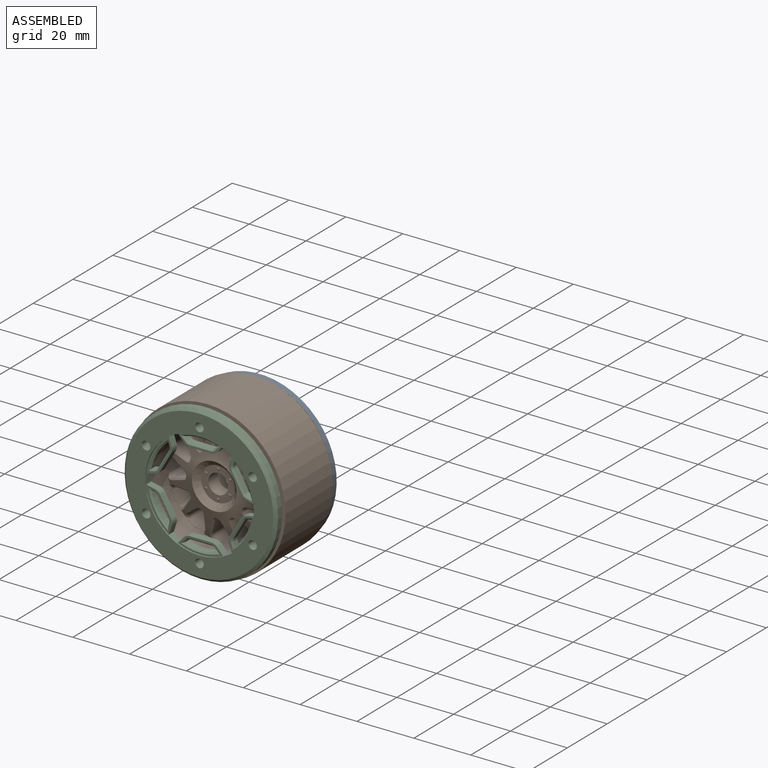
[diagram: assembled view]
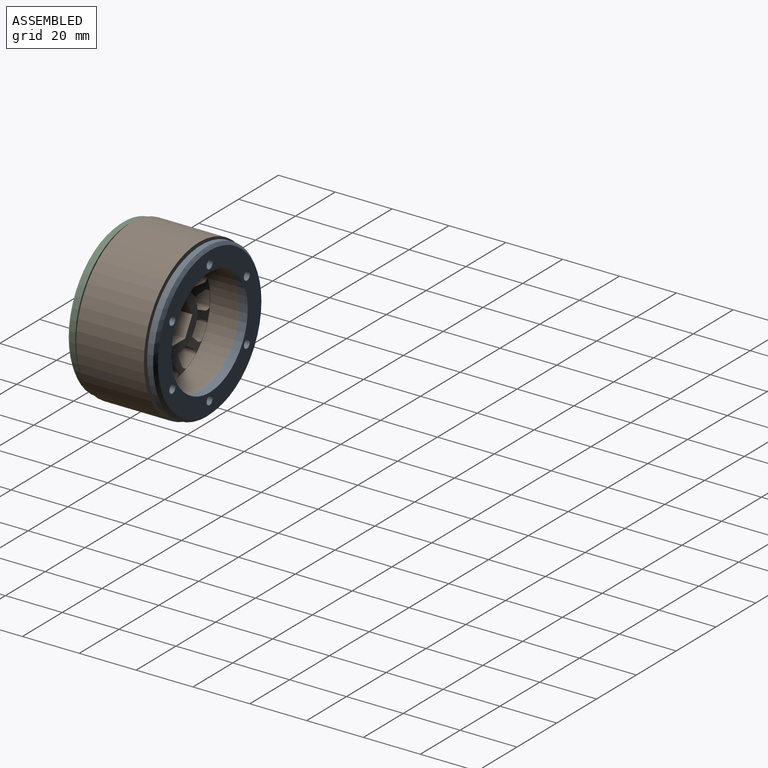
[diagram: assembled view, second angle]
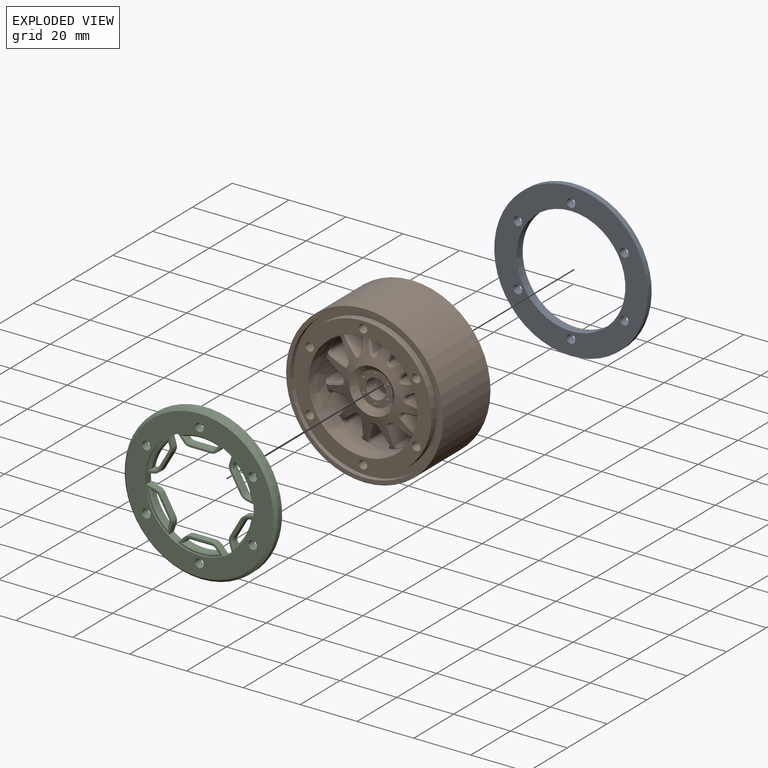
[diagram: exploded view]
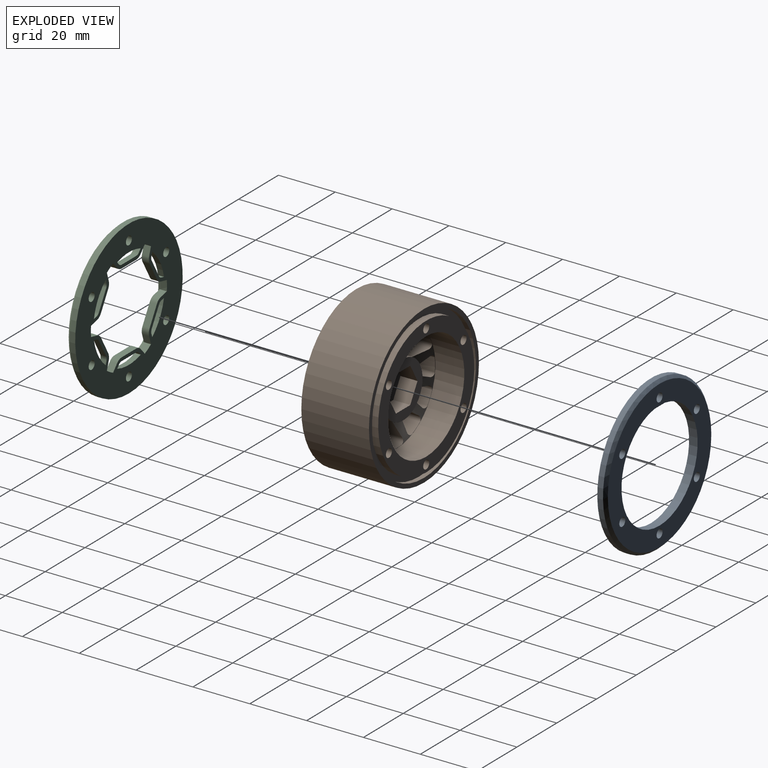
[diagram: exploded view, second angle]
ASSEMBLY  parts=3 mates=2
PART A: 11 faces, bbox 54x3x54 mm
  f0: cylinder r=19.13mm len=38.26mm, axis (0,1,0), area 360.6mm2, adj f8,f9
  f1: cylinder r=1.5mm len=3mm, axis (0,1,0), area 28.3mm2, adj f8,f9
  f2: cylinder r=1.5mm len=3mm, axis (0,1,0), area 28.3mm2, adj f8,f9
  f3: cylinder r=1.5mm len=3mm, axis (0,1,0), area 28.3mm2, adj f8,f9
  f4: cylinder r=1.5mm len=3mm, axis (0,1,0), area 28.3mm2, adj f8,f9
  f5: cylinder r=1.5mm len=3mm, axis (0,1,0), area 28.3mm2, adj f8,f9
  f6: cylinder r=1.5mm len=3mm, axis (0,1,0), area 28.3mm2, adj f8,f9
  f7: cylinder r=27mm len=54mm, axis (0,1,0), area 339.3mm2, adj f8,f10
  f8: plane 54x54mm, normal (0,-1,0), area 1098.1mm2, adj f0,f1,f2,f3,f4,f5,f6,f7
  f9: plane 52x52mm, normal (0,1,0), area 931.6mm2, adj f0,f1,f2,f3,f4,f5,f6,f10
  f10: cone r=27mm half-angle=45deg, axis (0,-1,0), area 235.5mm2, adj f7,f9
PART B: 226 faces, bbox 56x26.1x56 mm
  f0: cone r=7.9mm half-angle=70.8deg, axis (0,1,0), area 437.6mm2, adj f8,f20,f21,f22,f23,f24,f25,f26
  f1: plane 14.43x12.5mm, normal (0,1,0), area 96.8mm2, adj f19,f219,f220,f221,f222,f223,f224
  f2: cone r=19.15mm half-angle=71.8deg, axis (0,1,0), area 0.2mm2, adj f5,f24,f142,f146
  f3: cone r=19.15mm half-angle=71.8deg, axis (0,1,0), area 416.3mm2, adj f5,f6,f26,f32,f38,f44,f50,f56
  f4: plane 48.26x48.26mm, normal (0,-1,0), area 637.1mm2, adj f5,f18,f194,f196,f198,f200,f202,f204
  f5: cone r=19.13mm half-angle=0.1deg, axis (0,1,0), area 984.4mm2, adj f2,f3,f4,f92,f97,f102,f107,f112
  f6: cone r=7.9mm half-angle=45.5deg, axis (0,-1,0), area 119.8mm2, adj f3,f7
  f7: plane 11.88x11.88mm, normal (0,-1,0), area 68.5mm2, adj f6,f19,f152,f153,f154,f155,f156,f157
  f8: cylinder r=19.15mm len=38.3mm, axis (0,-1,0), area 1227.2mm2, adj f0,f9
  f9: plane 48.26x48.26mm, normal (0,1,0), area 635mm2, adj f8,f10,f206,f208,f210,f212,f214,f216
  f10: cylinder r=24.13mm len=48.26mm, axis (0,-1,0), area 379mm2, adj f9,f11
  f11: plane 52.26x52.26mm, normal (0,1,0), area 315.8mm2, adj f10,f12
  f12: cylinder r=26.13mm len=52.26mm, axis (0,-1,0), area 279.1mm2, adj f11,f13
  f13: plane 55.26x55.26mm, normal (0,1,0), area 253.3mm2, adj f12,f14
  f14: cylinder r=27.63mm len=55.26mm, axis (0,-1,0), area 4131.8mm2, adj f13,f15
  f15: plane 55.26x55.26mm, normal (0,-1,0), area 253.3mm2, adj f14,f16
  f16: cylinder r=26.13mm len=52.26mm, axis (0,-1,0), area 279.1mm2, adj f15,f17
  f17: plane 52.26x52.26mm, normal (0,-1,0), area 315.8mm2, adj f16,f18
  f18: cylinder r=24.13mm len=48.26mm, axis (0,-1,0), area 379mm2, adj f4,f17
  f19: cylinder r=3.5mm len=7mm, axis (0,-1,0), area 106.7mm2, adj f1,f7
  f20: plane 9.15x6.49mm, normal (0.93,0,0.38), area 39.9mm2, adj f0,f21,f25,f143
  f21: cylinder r=1mm len=6.33mm, axis (0,-1,0), area 14.7mm2, adj f0,f20,f22,f144
  f22: plane 9.15x6.49mm, normal (-0.93,0,0.38), area 39.9mm2, adj f0,f21,f23,f145
  f23: cylinder r=1.25mm len=6.97mm, axis (0,-1,0), area 15.5mm2, adj f0,f22,f24,f146
  f24: cylinder r=19.05mm len=7.01mm, axis (0,-1,0), area 29mm2, adj f0,f2,f23,f25,f142,f146
  f25: cylinder r=1.25mm len=6.97mm, axis (0,-1,0), area 15.5mm2, adj f0,f20,f24,f142
  f26: cylinder r=19.05mm len=7.01mm, axis (0,-1,0), area 32.1mm2, adj f0,f3,f27,f31,f97,f101
  f27: cylinder r=1.25mm len=6.97mm, axis (0,-1,0), area 15.5mm2, adj f0,f26,f28,f97
  f28: plane 9.15x6.49mm, normal (-0.38,0,0.93), area 39.9mm2, adj f0,f27,f29,f98
  f29: cylinder r=1mm len=6.33mm, axis (0,-1,0), area 15mm2, adj f0,f28,f30,f99
  f30: plane 9.15x6.49mm, normal (-0.38,0,-0.93), area 39.9mm2, adj f0,f29,f31,f100
  f31: cylinder r=1.25mm len=6.97mm, axis (0,-1,0), area 13.6mm2, adj f0,f26,f30,f101
  f32: cylinder r=19.05mm len=7.01mm, axis (0,-1,0), area 32.1mm2, adj f0,f3,f33,f37,f92,f96
  f33: cylinder r=1.25mm len=6.97mm, axis (0,-1,0), area 15.5mm2, adj f0,f32,f34,f92
  f34: plane 9.15x6.9mm, normal (0.13,0,0.99), area 39.9mm2, adj f0,f33,f35,f93
  f35: cylinder r=1mm len=6.33mm, axis (0,-1,0), area 15mm2, adj f0,f34,f36,f94
  f36: plane 9.15x5.65mm, normal (-0.79,0,-0.61), area 39.9mm2, adj f0,f35,f37,f95
  f37: cylinder r=1.25mm len=6.97mm, axis (0,-1,0), area 13.6mm2, adj f0,f32,f36,f96
  f38: cylinder r=19.05mm len=7.01mm, axis (0,-1,0), area 32.1mm2, adj f0,f3,f39,f43,f147,f151
  f39: cylinder r=1.25mm len=6.97mm, axis (0,-1,0), area 15.5mm2, adj f0,f38,f40,f147
  f40: plane 9.15x5.65mm, normal (0.61,0,0.79), area 39.9mm2, adj f0,f39,f41,f148
  f41: cylinder r=1mm len=6.33mm, axis (0,-1,0), area 15mm2, adj f0,f40,f42,f149
  f42: plane 9.15x6.9mm, normal (-0.99,0,-0.13), area 39.9mm2, adj f0,f41,f43,f150
  f43: cylinder r=1.25mm len=6.97mm, axis (0,-1,0), area 13.6mm2, adj f0,f38,f42,f151
  f44: cylinder r=19.05mm len=7.01mm, axis (0,-1,0), area 32.1mm2, adj f0,f3,f45,f49,f132,f136
  f45: cylinder r=1.25mm len=6.97mm, axis (0,-1,0), area 15.5mm2, adj f0,f44,f46,f132
  f46: plane 9.15x5.65mm, normal (0.79,0,-0.61), area 39.9mm2, adj f0,f45,f47,f133
  f47: cylinder r=1mm len=6.33mm, axis (0,-1,0), area 15mm2, adj f0,f46,f48,f134
  f48: plane 9.15x6.9mm, normal (-0.13,0,0.99), area 39.9mm2, adj f0,f47,f49,f135
  f49: cylinder r=1.25mm len=6.97mm, axis (0,-1,0), area 13.6mm2, adj f0,f44,f48,f136
  f50: cylinder r=19.05mm len=7.01mm, axis (0,-1,0), area 32.1mm2, adj f0,f3,f51,f55,f137,f141
  f51: cylinder r=1.25mm len=6.97mm, axis (0,-1,0), area 15.5mm2, adj f0,f50,f52,f137
  f52: plane 9.15x6.9mm, normal (0.99,0,-0.13), area 39.9mm2, adj f0,f51,f53,f138
  f53: cylinder r=1mm len=6.33mm, axis (0,-1,0), area 15mm2, adj f0,f52,f54,f139
  f54: plane 9.15x5.65mm, normal (-0.61,0,0.79), area 39.9mm2, adj f0,f53,f55,f140
  f55: cylinder r=1.25mm len=6.97mm, axis (0,-1,0), area 13.6mm2, adj f0,f50,f54,f141
  f56: cylinder r=19.05mm len=7.01mm, axis (0,-1,0), area 32.1mm2, adj f0,f3,f57,f61,f127,f131
  f57: cylinder r=1.25mm len=6.97mm, axis (0,-1,0), area 15.5mm2, adj f0,f56,f58,f127
  f58: plane 9.15x6.49mm, normal (0.38,0,-0.93), area 39.9mm2, adj f0,f57,f59,f128
  f59: cylinder r=1mm len=6.33mm, axis (0,-1,0), area 15mm2, adj f0,f58,f60,f129
  f60: plane 9.15x6.49mm, normal (0.38,0,0.93), area 39.9mm2, adj f0,f59,f61,f130
  f61: cylinder r=1.25mm len=6.97mm, axis (0,-1,0), area 13.6mm2, adj f0,f56,f60,f131
  f62: cylinder r=19.05mm len=7.01mm, axis (0,-1,0), area 32.1mm2, adj f0,f3,f63,f67,f122,f126
  f63: cylinder r=1.25mm len=6.97mm, axis (0,-1,0), area 15.5mm2, adj f0,f62,f64,f122
  f64: plane 9.15x6.9mm, normal (-0.13,0,-0.99), area 39.9mm2, adj f0,f63,f65,f123
  f65: cylinder r=1mm len=6.33mm, axis (0,-1,0), area 15mm2, adj f0,f64,f66,f124
  f66: plane 9.15x5.65mm, normal (0.79,0,0.61), area 39.9mm2, adj f0,f65,f67,f125
  f67: cylinder r=1.25mm len=6.97mm, axis (0,-1,0), area 13.6mm2, adj f0,f62,f66,f126
  f68: cylinder r=19.05mm len=7.01mm, axis (0,-1,0), area 32.1mm2, adj f0,f3,f69,f73,f117,f121
  f69: cylinder r=1.25mm len=6.97mm, axis (0,-1,0), area 15.5mm2, adj f0,f68,f70,f117
  f70: plane 9.15x5.65mm, normal (-0.61,0,-0.79), area 39.9mm2, adj f0,f69,f71,f118
  f71: cylinder r=1mm len=6.33mm, axis (0,-1,0), area 15mm2, adj f0,f70,f72,f119
  f72: plane 9.15x6.9mm, normal (0.99,0,0.13), area 39.9mm2, adj f0,f71,f73,f120
  f73: cylinder r=1.25mm len=6.97mm, axis (0,-1,0), area 13.6mm2, adj f0,f68,f72,f121
  f74: cylinder r=19.05mm len=7.01mm, axis (0,-1,0), area 32.1mm2, adj f0,f3,f75,f79,f112,f116
  f75: cylinder r=1.25mm len=6.97mm, axis (0,-1,0), area 15.5mm2, adj f0,f74,f76,f112
  f76: plane 9.15x6.49mm, normal (-0.93,0,-0.38), area 39.9mm2, adj f0,f75,f77,f113
  f77: cylinder r=1mm len=6.33mm, axis (0,-1,0), area 15mm2, adj f0,f76,f78,f114
  f78: plane 9.15x6.49mm, normal (0.93,0,-0.38), area 39.9mm2, adj f0,f77,f79,f115
  f79: cylinder r=1.25mm len=6.97mm, axis (0,-1,0), area 13.6mm2, adj f0,f74,f78,f116
  f80: cylinder r=19.05mm len=7.01mm, axis (0,-1,0), area 32.1mm2, adj f0,f3,f81,f85,f102,f106
  f81: cylinder r=1.25mm len=6.97mm, axis (0,-1,0), area 15.5mm2, adj f0,f80,f82,f102
  f82: plane 9.15x5.65mm, normal (-0.79,0,0.61), area 39.9mm2, adj f0,f81,f83,f103
  f83: cylinder r=1mm len=6.33mm, axis (0,-1,0), area 15mm2, adj f0,f82,f84,f104
  f84: plane 9.15x6.9mm, normal (0.13,0,-0.99), area 39.9mm2, adj f0,f83,f85,f105
  f85: cylinder r=1.25mm len=6.97mm, axis (0,-1,0), area 13.6mm2, adj f0,f80,f84,f106
  f86: cylinder r=19.05mm len=7.01mm, axis (0,-1,0), area 32.1mm2, adj f0,f3,f87,f91,f107,f111
  f87: cylinder r=1.25mm len=6.97mm, axis (0,-1,0), area 15.5mm2, adj f0,f86,f88,f107
  f88: plane 9.15x6.9mm, normal (-0.99,0,0.13), area 39.9mm2, adj f0,f87,f89,f108
  f89: cylinder r=1mm len=6.33mm, axis (0,-1,0), area 15mm2, adj f0,f88,f90,f109
  f90: plane 9.15x5.65mm, normal (0.61,0,-0.79), area 39.9mm2, adj f0,f89,f91,f110
  f91: cylinder r=1.25mm len=6.97mm, axis (0,-1,0), area 13.6mm2, adj f0,f86,f90,f111
  f92: bspline ~3.58x1.79mm, area 1.8mm2, adj f3,f5,f32,f33,f93
  f93: bspline ~6.43x2.53mm, area 4.9mm2, adj f3,f34,f92,f94
  f94: bspline ~2.61x1.88mm, area 2.1mm2, adj f3,f35,f93,f95
  f95: bspline ~5.4x4.12mm, area 4.9mm2, adj f3,f36,f94,f96
  f96: bspline ~2.73x1.24mm, area 1.7mm2, adj f3,f32,f37,f95
  f97: bspline ~3.19x2.48mm, area 1.8mm2, adj f3,f5,f26,f27,f98
  f98: bspline ~5.82x2.92mm, area 4.9mm2, adj f3,f28,f97,f99
  f99: bspline ~2.91x1mm, area 2.1mm2, adj f3,f29,f98,f100
  f100: bspline ~5.82x2.92mm, area 4.9mm2, adj f3,f30,f99,f101
  f101: bspline ~2.43x1.54mm, area 1.7mm2, adj f3,f26,f31,f100
  f102: bspline ~3.24x2.4mm, area 1.8mm2, adj f3,f5,f80,f81,f103
  f103: bspline ~5.4x4.12mm, area 4.9mm2, adj f3,f82,f102,f104
  f104: bspline ~2.61x1.88mm, area 2.1mm2, adj f3,f83,f103,f105
  f105: bspline ~6.43x2.53mm, area 4.9mm2, adj f3,f84,f104,f106
  f106: bspline ~2.3x1.79mm, area 1.7mm2, adj f3,f80,f85,f105
  f107: bspline ~3.58x1.79mm, area 1.8mm2, adj f3,f5,f86,f87,f108
  f108: bspline ~6.43x2.53mm, area 4.9mm2, adj f3,f88,f107,f109
  f109: bspline ~2.61x1.88mm, area 2.1mm2, adj f3,f89,f108,f110
  f110: bspline ~5.4x4.12mm, area 4.9mm2, adj f3,f90,f109,f111
  f111: bspline ~2.73x1.24mm, area 1.7mm2, adj f3,f86,f91,f110
  f112: bspline ~3.19x2.48mm, area 1.8mm2, adj f3,f5,f74,f75,f113
  f113: bspline ~5.82x2.92mm, area 4.9mm2, adj f3,f76,f112,f114
  f114: bspline ~2.91x1mm, area 2.1mm2, adj f3,f77,f113,f115
  f115: bspline ~5.82x2.92mm, area 4.9mm2, adj f3,f78,f114,f116
  f116: bspline ~2.43x1.54mm, area 1.7mm2, adj f3,f74,f79,f115
  f117: bspline ~3.24x2.4mm, area 1.8mm2, adj f3,f5,f68,f69,f118
  f118: bspline ~5.4x4.12mm, area 4.9mm2, adj f3,f70,f117,f119
  f119: bspline ~2.61x1.88mm, area 2.1mm2, adj f3,f71,f118,f120
  f120: bspline ~6.43x2.53mm, area 4.9mm2, adj f3,f72,f119,f121
  f121: bspline ~2.3x1.79mm, area 1.7mm2, adj f3,f68,f73,f120
  f122: bspline ~3.58x1.79mm, area 1.8mm2, adj f3,f5,f62,f63,f123
  f123: bspline ~6.43x2.53mm, area 4.9mm2, adj f3,f64,f122,f124
  f124: bspline ~2.61x1.88mm, area 2.1mm2, adj f3,f65,f123,f125
  f125: bspline ~5.4x4.12mm, area 4.9mm2, adj f3,f66,f124,f126
  f126: bspline ~2.73x1.24mm, area 1.7mm2, adj f3,f62,f67,f125
  f127: bspline ~3.19x2.48mm, area 1.8mm2, adj f3,f5,f56,f57,f128
  f128: bspline ~5.82x2.92mm, area 4.9mm2, adj f3,f58,f127,f129
  f129: bspline ~2.91x1mm, area 2.1mm2, adj f3,f59,f128,f130
  f130: bspline ~5.82x2.92mm, area 4.9mm2, adj f3,f60,f129,f131
  f131: bspline ~2.43x1.54mm, area 1.7mm2, adj f3,f56,f61,f130
  f132: bspline ~3.24x2.4mm, area 1.8mm2, adj f3,f5,f44,f45,f133
  f133: bspline ~5.4x4.12mm, area 4.9mm2, adj f3,f46,f132,f134
  f134: bspline ~2.61x1.88mm, area 2.1mm2, adj f3,f47,f133,f135
  f135: bspline ~6.43x2.53mm, area 4.9mm2, adj f3,f48,f134,f136
  f136: bspline ~2.3x1.79mm, area 1.7mm2, adj f3,f44,f49,f135
  f137: bspline ~3.58x1.79mm, area 1.8mm2, adj f3,f5,f50,f51,f138
  f138: bspline ~6.43x2.53mm, area 4.9mm2, adj f3,f52,f137,f139
  f139: bspline ~2.61x1.88mm, area 2.1mm2, adj f3,f53,f138,f140
  f140: bspline ~5.4x4.12mm, area 4.9mm2, adj f3,f54,f139,f141
  f141: bspline ~2.73x1.24mm, area 1.7mm2, adj f3,f50,f55,f140
  f142: bspline ~3.19x2.48mm, area 1.8mm2, adj f2,f3,f5,f24,f25,f143
  f143: bspline ~5.82x2.92mm, area 4.9mm2, adj f3,f20,f142,f144
  f144: bspline ~2.91x1mm, area 2.1mm2, adj f3,f21,f143,f145
  f145: bspline ~5.82x2.92mm, area 4.9mm2, adj f3,f22,f144,f146
  f146: bspline ~3.19x2.48mm, area 1.8mm2, adj f2,f3,f5,f23,f24,f145
  f147: bspline ~3.24x2.4mm, area 1.8mm2, adj f3,f5,f38,f39,f148
  f148: bspline ~5.4x4.12mm, area 4.9mm2, adj f3,f40,f147,f149
  f149: bspline ~2.61x1.88mm, area 2.1mm2, adj f3,f41,f148,f150
  f150: bspline ~6.43x2.53mm, area 4.9mm2, adj f3,f42,f149,f151
  f151: bspline ~2.3x1.79mm, area 1.7mm2, adj f3,f38,f43,f150
  f152: plane 0.5x0.49mm, normal (0,0,1), area 0.2mm2, adj f7,f153,f157,f158
  f153: plane 0.5x0.43mm, normal (-0.87,0,0.5), area 0.2mm2, adj f7,f152,f154,f158
  f154: plane 0.5x0.43mm, normal (-0.87,0,-0.5), area 0.2mm2, adj f7,f153,f155,f158
  f155: plane 0.5x0.49mm, normal (0,0,-1), area 0.2mm2, adj f7,f154,f156,f158
  f156: plane 0.5x0.43mm, normal (0.87,0,-0.5), area 0.2mm2, adj f7,f155,f157,f158
  f157: plane 0.5x0.43mm, normal (0.87,0,0.5), area 0.2mm2, adj f7,f152,f156,f158
  f158: plane 0.98x0.85mm, normal (0,-1,0), area 0.6mm2, adj f152,f153,f154,f155,f156,f157
  f159: plane 0.5x0.49mm, normal (0,0,1), area 0.2mm2, adj f7,f160,f164,f165
  f160: plane 0.5x0.43mm, normal (-0.87,0,0.5), area 0.2mm2, adj f7,f159,f161,f165
  f161: plane 0.5x0.43mm, normal (-0.87,0,-0.5), area 0.2mm2, adj f7,f160,f162,f165
  f162: plane 0.5x0.49mm, normal (0,0,-1), area 0.2mm2, adj f7,f161,f163,f165
  f163: plane 0.5x0.43mm, normal (0.87,0,-0.5), area 0.2mm2, adj f7,f162,f164,f165
  f164: plane 0.5x0.43mm, normal (0.87,0,0.5), area 0.2mm2, adj f7,f159,f163,f165
  f165: plane 0.98x0.85mm, normal (0,-1,0), area 0.6mm2, adj f159,f160,f161,f162,f163,f164
  f166: plane 0.5x0.43mm, normal (-0.87,0,0.5), area 0.2mm2, adj f7,f167,f171,f172
  f167: plane 0.5x0.43mm, normal (-0.87,0,-0.5), area 0.2mm2, adj f7,f166,f168,f172
  f168: plane 0.5x0.49mm, normal (0,0,-1), area 0.2mm2, adj f7,f167,f169,f172
  f169: plane 0.5x0.43mm, normal (0.87,0,-0.5), area 0.2mm2, adj f7,f168,f170,f172
  f170: plane 0.5x0.43mm, normal (0.87,0,0.5), area 0.2mm2, adj f7,f169,f171,f172
  f171: plane 0.5x0.49mm, normal (0,0,1), area 0.2mm2, adj f7,f166,f170,f172
  f172: plane 0.98x0.85mm, normal (0,-1,0), area 0.6mm2, adj f166,f167,f168,f169,f170,f171
  f173: plane 0.5x0.43mm, normal (-0.87,0,-0.5), area 0.2mm2, adj f7,f174,f178,f179
  f174: plane 0.5x0.49mm, normal (0,0,-1), area 0.2mm2, adj f7,f173,f175,f179
  f175: plane 0.5x0.43mm, normal (0.87,0,-0.5), area 0.2mm2, adj f7,f174,f176,f179
  f176: plane 0.5x0.43mm, normal (0.87,0,0.5), area 0.2mm2, adj f7,f175,f177,f179
  f177: plane 0.5x0.49mm, normal (0,0,1), area 0.2mm2, adj f7,f176,f178,f179
  f178: plane 0.5x0.43mm, normal (-0.87,0,0.5), area 0.2mm2, adj f7,f173,f177,f179
  f179: plane 0.98x0.85mm, normal (0,-1,0), area 0.6mm2, adj f173,f174,f175,f176,f177,f178
  f180: plane 0.5x0.49mm, normal (0,0,-1), area 0.2mm2, adj f7,f181,f185,f186
  f181: plane 0.5x0.43mm, normal (0.87,0,-0.5), area 0.2mm2, adj f7,f180,f182,f186
  f182: plane 0.5x0.43mm, normal (0.87,0,0.5), area 0.2mm2, adj f7,f181,f183,f186
  f183: plane 0.5x0.49mm, normal (0,0,1), area 0.2mm2, adj f7,f182,f184,f186
  f184: plane 0.5x0.43mm, normal (-0.87,0,0.5), area 0.2mm2, adj f7,f183,f185,f186
  f185: plane 0.5x0.43mm, normal (-0.87,0,-0.5), area 0.2mm2, adj f7,f180,f184,f186
  f186: plane 0.98x0.85mm, normal (0,-1,0), area 0.6mm2, adj f180,f181,f182,f183,f184,f185
  f187: plane 0.5x0.43mm, normal (0.87,0,-0.5), area 0.2mm2, adj f7,f188,f192,f193
  f188: plane 0.5x0.43mm, normal (0.87,0,0.5), area 0.2mm2, adj f7,f187,f189,f193
  f189: plane 0.5x0.49mm, normal (0,0,1), area 0.2mm2, adj f7,f188,f190,f193
  f190: plane 0.5x0.43mm, normal (-0.87,0,0.5), area 0.2mm2, adj f7,f189,f191,f193
  f191: plane 0.5x0.43mm, normal (-0.87,0,-0.5), area 0.2mm2, adj f7,f190,f192,f193
  f192: plane 0.5x0.49mm, normal (0,0,-1), area 0.2mm2, adj f7,f187,f191,f193
  f193: plane 0.98x0.85mm, normal (0,-1,0), area 0.6mm2, adj f187,f188,f189,f190,f191,f192
  f194: cylinder r=1.5mm len=6mm, axis (0,-1,0), area 56.5mm2, adj f4,f195
  f195: plane 3x3mm, normal (0,-1,0), area 7.1mm2, adj f194
  f196: cylinder r=1.5mm len=6mm, axis (0,-1,0), area 56.5mm2, adj f4,f197
  f197: plane 3x3mm, normal (0,-1,0), area 7.1mm2, adj f196
  f198: cylinder r=1.5mm len=6mm, axis (0,-1,0), area 56.5mm2, adj f4,f199
  f199: plane 3x3mm, normal (0,-1,0), area 7.1mm2, adj f198
  f200: cylinder r=1.5mm len=6mm, axis (0,-1,0), area 56.5mm2, adj f4,f201
  f201: plane 3x3mm, normal (0,-1,0), area 7.1mm2, adj f200
  f202: cylinder r=1.5mm len=6mm, axis (0,-1,0), area 56.5mm2, adj f4,f203
  f203: plane 3x3mm, normal (0,-1,0), area 7.1mm2, adj f202
  f204: cylinder r=1.5mm len=6mm, axis (0,-1,0), area 56.5mm2, adj f4,f205
  f205: plane 3x3mm, normal (0,-1,0), area 7.1mm2, adj f204
  f206: cylinder r=1.5mm len=6mm, axis (0,1,0), area 56.5mm2, adj f9,f207
  f207: plane 3x3mm, normal (0,1,0), area 7.1mm2, adj f206
  f208: cylinder r=1.5mm len=6mm, axis (0,1,0), area 56.5mm2, adj f9,f209
  f209: plane 3x3mm, normal (0,1,0), area 7.1mm2, adj f208
  f210: cylinder r=1.5mm len=6mm, axis (0,1,0), area 56.5mm2, adj f9,f211
  f211: plane 3x3mm, normal (0,1,0), area 7.1mm2, adj f210
  f212: cylinder r=1.5mm len=6mm, axis (0,1,0), area 56.5mm2, adj f9,f213
  f213: plane 3x3mm, normal (0,1,0), area 7.1mm2, adj f212
  f214: cylinder r=1.5mm len=6mm, axis (0,1,0), area 56.5mm2, adj f9,f215
  f215: plane 3x3mm, normal (0,1,0), area 7.1mm2, adj f214
  f216: cylinder r=1.5mm len=6mm, axis (0,1,0), area 56.5mm2, adj f9,f217
  f217: plane 3x3mm, normal (0,1,0), area 7.1mm2, adj f216
  f218: cylinder r=9.77mm len=19.54mm, axis (0,-1,0), area 328.3mm2, adj f0,f225
  f219: plane 7.22x6mm, normal (0,0,-1), area 43.3mm2, adj f1,f220,f224,f225
  f220: plane 6.25x6mm, normal (0.87,0,-0.5), area 43.3mm2, adj f1,f219,f221,f225
  f221: plane 6.25x6mm, normal (0.87,0,0.5), area 43.3mm2, adj f1,f220,f222,f225
  f222: plane 7.22x6mm, normal (0,0,1), area 43.3mm2, adj f1,f221,f223,f225
  f223: plane 6.25x6mm, normal (-0.87,0,0.5), area 43.3mm2, adj f1,f222,f224,f225
  f224: plane 6.25x6mm, normal (-0.87,0,-0.5), area 43.3mm2, adj f1,f219,f223,f225
  f225: plane 19.54x19.54mm, normal (0,1,0), area 164.6mm2, adj f218,f219,f220,f221,f222,f223,f224
PART C: 119 faces, bbox 54x3x54 mm
  f0: plane 2.5x2.28mm, normal (-0.74,0,-0.67), area 7.7mm2, adj f18,f66,f75,f77
  f1: plane 7.34x2.5mm, normal (0,0,-1), area 18.4mm2, adj f18,f19,f75,f77
  f2: plane 2.5x2.28mm, normal (0.74,0,-0.67), area 7.7mm2, adj f19,f66,f75,f77
  f3: plane 2.93x2.5mm, normal (-0.95,0,0.31), area 7.7mm2, adj f20,f66,f75,f78
  f4: plane 6.36x3.67mm, normal (-0.87,0,-0.5), area 18.4mm2, adj f20,f21,f75,f78
  f5: plane 3.01x2.5mm, normal (-0.21,0,-0.98), area 7.7mm2, adj f21,f66,f75,f78
  f6: plane 3.01x2.5mm, normal (-0.21,0,0.98), area 7.7mm2, adj f22,f66,f75,f79
  f7: plane 6.36x3.67mm, normal (-0.87,0,0.5), area 18.4mm2, adj f22,f23,f75,f79
  f8: plane 2.93x2.5mm, normal (-0.95,0,-0.31), area 7.7mm2, adj f23,f66,f75,f79
  f9: plane 2.5x2.28mm, normal (0.74,0,0.67), area 7.7mm2, adj f24,f66,f75,f80
  f10: plane 7.34x2.5mm, normal (0,0,1), area 18.4mm2, adj f24,f25,f75,f80
  f11: plane 2.5x2.28mm, normal (-0.74,0,0.67), area 7.7mm2, adj f25,f66,f75,f80
  f12: plane 2.93x2.5mm, normal (0.95,0,-0.31), area 7.7mm2, adj f26,f66,f75,f81
  f13: plane 6.36x3.67mm, normal (0.87,0,0.5), area 18.4mm2, adj f26,f27,f75,f81
  f14: plane 3.01x2.5mm, normal (0.21,0,0.98), area 7.7mm2, adj f27,f66,f75,f81
  f15: plane 3.01x2.5mm, normal (0.21,0,-0.98), area 7.7mm2, adj f28,f66,f75,f76
  f16: plane 6.36x3.67mm, normal (0.87,0,-0.5), area 18.4mm2, adj f28,f29,f75,f76
  f17: plane 2.93x2.5mm, normal (0.95,0,0.31), area 7.7mm2, adj f29,f66,f75,f76
  f18: cylinder r=3mm len=2.5mm, axis (0,1,0), area 6.3mm2, adj f0,f1,f75,f77
  f19: cylinder r=3mm len=2.5mm, axis (0,1,0), area 6.3mm2, adj f1,f2,f75,f77
  f20: cylinder r=3mm len=2.5mm, axis (0,1,0), area 6.3mm2, adj f3,f4,f75,f78
  f21: cylinder r=3mm len=2.5mm, axis (0,1,0), area 6.3mm2, adj f4,f5,f75,f78
  f22: cylinder r=3mm len=2.5mm, axis (0,1,0), area 6.3mm2, adj f6,f7,f75,f79
  f23: cylinder r=3mm len=2.5mm, axis (0,1,0), area 6.3mm2, adj f7,f8,f75,f79
  f24: cylinder r=3mm len=2.5mm, axis (0,1,0), area 6.3mm2, adj f9,f10,f75,f80
  f25: cylinder r=3mm len=2.5mm, axis (0,1,0), area 6.3mm2, adj f10,f11,f75,f80
  f26: cylinder r=3mm len=2.5mm, axis (0,1,0), area 6.3mm2, adj f12,f13,f75,f81
  f27: cylinder r=3mm len=2.5mm, axis (0,1,0), area 6.3mm2, adj f13,f14,f75,f81
  f28: cylinder r=3mm len=2.5mm, axis (0,1,0), area 6.3mm2, adj f15,f16,f75,f76
  f29: cylinder r=3mm len=2.5mm, axis (0,1,0), area 6.3mm2, adj f16,f17,f75,f76
  f30: plane 6.36x3.67mm, normal (-0.87,0,-0.5), area 14.7mm2, adj f31,f35,f75,f107
  f31: cylinder r=1.8mm len=2mm, axis (0,-1,0), area 3mm2, adj f30,f32,f75,f106
  f32: plane 2x1.33mm, normal (-0.21,0,-0.98), area 2.7mm2, adj f31,f33,f75,f108
  f33: cylinder r=17.93mm len=10.25mm, axis (0,-1,0), area 24.1mm2, adj f32,f34,f75,f110
  f34: plane 2x1.29mm, normal (-0.95,0,0.31), area 2.7mm2, adj f33,f35,f75,f111
  f35: cylinder r=1.8mm len=2mm, axis (0,-1,0), area 3mm2, adj f30,f34,f75,f109
  f36: plane 7.34x2mm, normal (0,0,-1), area 14.7mm2, adj f37,f41,f75,f83
  f37: cylinder r=1.8mm len=2mm, axis (0,-1,0), area 3mm2, adj f36,f38,f75,f82
  f38: plane 2x1.01mm, normal (0.74,0,-0.67), area 2.7mm2, adj f37,f39,f75,f84
  f39: cylinder r=17.93mm len=11.83mm, axis (0,-1,0), area 24.1mm2, adj f38,f40,f75,f86
  f40: plane 2x1.01mm, normal (-0.74,0,-0.67), area 2.7mm2, adj f39,f41,f75,f87
  f41: cylinder r=1.8mm len=2mm, axis (0,-1,0), area 3mm2, adj f36,f40,f75,f85
  f42: plane 6.36x3.67mm, normal (0.87,0,-0.5), area 14.7mm2, adj f43,f47,f75,f89
  f43: cylinder r=1.8mm len=2mm, axis (0,-1,0), area 3mm2, adj f42,f44,f75,f88
  f44: plane 2x1.29mm, normal (0.95,0,0.31), area 2.7mm2, adj f43,f45,f75,f90
  f45: cylinder r=17.93mm len=10.25mm, axis (0,-1,0), area 24.1mm2, adj f44,f46,f75,f92
  f46: plane 2x1.33mm, normal (0.21,0,-0.98), area 2.7mm2, adj f45,f47,f75,f93
  f47: cylinder r=1.8mm len=2mm, axis (0,-1,0), area 3mm2, adj f42,f46,f75,f91
  f48: plane 6.36x3.67mm, normal (0.87,0,0.5), area 14.7mm2, adj f49,f53,f75,f95
  f49: cylinder r=1.8mm len=2mm, axis (0,-1,0), area 3mm2, adj f48,f50,f75,f94
  f50: plane 2x1.33mm, normal (0.21,0,0.98), area 2.7mm2, adj f49,f51,f75,f96
  f51: cylinder r=17.93mm len=10.25mm, axis (0,-1,0), area 24.1mm2, adj f50,f52,f75,f98
  f52: plane 2x1.29mm, normal (0.95,0,-0.31), area 2.7mm2, adj f51,f53,f75,f99
  f53: cylinder r=1.8mm len=2mm, axis (0,-1,0), area 3mm2, adj f48,f52,f75,f97
  f54: plane 7.34x2mm, normal (0,0,1), area 14.7mm2, adj f55,f59,f75,f101
  f55: cylinder r=1.8mm len=2mm, axis (0,-1,0), area 3mm2, adj f54,f56,f75,f100
  f56: plane 2x1.01mm, normal (-0.74,0,0.67), area 2.7mm2, adj f55,f57,f75,f102
  f57: cylinder r=17.93mm len=11.83mm, axis (0,-1,0), area 24.1mm2, adj f56,f58,f75,f104
  f58: plane 2x1.01mm, normal (0.74,0,0.67), area 2.7mm2, adj f57,f59,f75,f105
  f59: cylinder r=1.8mm len=2mm, axis (0,-1,0), area 3mm2, adj f54,f58,f75,f103
  f60: cylinder r=1.8mm len=2mm, axis (0,-1,0), area 3mm2, adj f61,f65,f75,f115
  f61: plane 2x1.29mm, normal (-0.95,0,-0.31), area 2.7mm2, adj f60,f62,f75,f117
  f62: cylinder r=17.93mm len=10.25mm, axis (0,-1,0), area 24.1mm2, adj f61,f63,f75,f116
  f63: plane 2x1.33mm, normal (-0.21,0,0.98), area 2.7mm2, adj f62,f64,f75,f114
  f64: cylinder r=1.8mm len=2mm, axis (0,-1,0), area 3mm2, adj f63,f65,f75,f112
  f65: plane 6.36x3.67mm, normal (-0.87,0,0.5), area 14.7mm2, adj f60,f64,f75,f113
  f66: cylinder r=19.13mm len=38.26mm, axis (0,1,0), area 114.3mm2, adj f0,f2,f3,f5,f6,f8,f9,f11
  f67: cylinder r=27mm len=54mm, axis (0,1,0), area 339.3mm2, adj f75,f118
  f68: cylinder r=1.5mm len=3mm, axis (0,1,0), area 28.3mm2, adj f74,f75
  f69: cylinder r=1.5mm len=3mm, axis (0,1,0), area 28.3mm2, adj f74,f75
  f70: cylinder r=1.5mm len=3mm, axis (0,1,0), area 28.3mm2, adj f74,f75
  f71: cylinder r=1.5mm len=3mm, axis (0,1,0), area 28.3mm2, adj f74,f75
  f72: cylinder r=1.5mm len=3mm, axis (0,1,0), area 28.3mm2, adj f74,f75
  f73: cylinder r=1.5mm len=3mm, axis (0,1,0), area 28.3mm2, adj f74,f75
  f74: plane 52x52mm, normal (0,-1,0), area 931.6mm2, adj f66,f68,f69,f70,f71,f72,f73,f118
  f75: plane 54x54mm, normal (0,1,0), area 1314.5mm2, adj f0,f1,f2,f3,f4,f5,f6,f7
  f76: plane 13.79x9.05mm, normal (0,-1,0), area 22.5mm2, adj f15,f16,f17,f28,f29,f66,f112,f113
  f77: plane 15.92x5mm, normal (0,-1,0), area 22.5mm2, adj f0,f1,f2,f18,f19,f66,f100,f101
  f78: plane 13.79x9.05mm, normal (0,-1,0), area 22.5mm2, adj f3,f4,f5,f20,f21,f66,f94,f95
  f79: plane 13.79x9.05mm, normal (0,-1,0), area 22.5mm2, adj f6,f7,f8,f22,f23,f66,f88,f89
  f80: plane 15.92x5mm, normal (0,-1,0), area 22.5mm2, adj f9,f10,f11,f24,f25,f66,f82,f83
  f81: plane 13.79x9.05mm, normal (0,-1,0), area 22.5mm2, adj f12,f13,f14,f26,f27,f66,f106,f107
  f82: cone r=1.8mm half-angle=45deg, axis (0,-1,0), area 1.2mm2, adj f37,f80,f83,f84
  f83: plane 7.34x0.5mm, normal (0,-0.71,-0.71), area 5.2mm2, adj f36,f80,f82,f85
  f84: plane 1.79x1.56mm, normal (0.52,-0.71,-0.48), area 1.2mm2, adj f38,f80,f82,f86
  f85: cone r=1.8mm half-angle=45deg, axis (0,-1,0), area 1.2mm2, adj f41,f80,f83,f87
  f86: cone r=17.93mm half-angle=45deg, axis (0,-1,0), area 9.2mm2, adj f39,f80,f84,f87
  f87: plane 1.79x1.56mm, normal (-0.52,-0.71,-0.48), area 1.2mm2, adj f40,f80,f85,f86
  f88: cone r=1.8mm half-angle=45deg, axis (0,-1,0), area 1.2mm2, adj f43,f79,f89,f90
  f89: plane 6.61x4.1mm, normal (0.61,-0.71,-0.35), area 5.2mm2, adj f42,f79,f88,f91
  f90: plane 2.16x0.9mm, normal (0.67,-0.71,0.22), area 1.2mm2, adj f44,f79,f88,f92
  f91: cone r=1.8mm half-angle=45deg, axis (0,-1,0), area 1.2mm2, adj f47,f79,f89,f93
  f92: cone r=17.93mm half-angle=45deg, axis (0,-1,0), area 9.2mm2, adj f45,f79,f90,f93
  f93: plane 2.06x0.94mm, normal (0.15,-0.71,-0.69), area 1.2mm2, adj f46,f79,f91,f92
  f94: cone r=1.8mm half-angle=45deg, axis (0,-1,0), area 1.2mm2, adj f49,f78,f95,f96
  f95: plane 6.61x4.1mm, normal (0.61,-0.71,0.35), area 5.2mm2, adj f48,f78,f94,f97
  f96: plane 2.06x0.94mm, normal (0.15,-0.71,0.69), area 1.2mm2, adj f50,f78,f94,f98
  f97: cone r=1.8mm half-angle=45deg, axis (0,-1,0), area 1.2mm2, adj f53,f78,f95,f99
  f98: cone r=17.93mm half-angle=45deg, axis (0,-1,0), area 9.2mm2, adj f51,f78,f96,f99
  f99: plane 2.16x0.9mm, normal (0.67,-0.71,-0.22), area 1.2mm2, adj f52,f78,f97,f98
  f100: cone r=1.8mm half-angle=45deg, axis (0,-1,0), area 1.2mm2, adj f55,f77,f101,f102
  f101: plane 7.34x0.5mm, normal (0,-0.71,0.71), area 5.2mm2, adj f54,f77,f100,f103
  f102: plane 1.79x1.56mm, normal (-0.52,-0.71,0.48), area 1.2mm2, adj f56,f77,f100,f104
  f103: cone r=1.8mm half-angle=45deg, axis (0,-1,0), area 1.2mm2, adj f59,f77,f101,f105
  f104: cone r=17.93mm half-angle=45deg, axis (0,-1,0), area 9.2mm2, adj f57,f77,f102,f105
  f105: plane 1.79x1.56mm, normal (0.52,-0.71,0.48), area 1.2mm2, adj f58,f77,f103,f104
  f106: cone r=1.8mm half-angle=45deg, axis (0,-1,0), area 1.2mm2, adj f31,f81,f107,f108
  f107: plane 6.61x4.1mm, normal (-0.61,-0.71,-0.35), area 5.2mm2, adj f30,f81,f106,f109
  f108: plane 2.06x0.94mm, normal (-0.15,-0.71,-0.69), area 1.2mm2, adj f32,f81,f106,f110
  f109: cone r=1.8mm half-angle=45deg, axis (0,-1,0), area 1.2mm2, adj f35,f81,f107,f111
  f110: cone r=17.93mm half-angle=45deg, axis (0,-1,0), area 9.2mm2, adj f33,f81,f108,f111
  f111: plane 2.16x0.9mm, normal (-0.67,-0.71,0.22), area 1.2mm2, adj f34,f81,f109,f110
  f112: cone r=1.8mm half-angle=45deg, axis (0,-1,0), area 1.2mm2, adj f64,f76,f113,f114
  f113: plane 6.61x4.1mm, normal (-0.61,-0.71,0.35), area 5.2mm2, adj f65,f76,f112,f115
  f114: plane 2.06x0.94mm, normal (-0.15,-0.71,0.69), area 1.2mm2, adj f63,f76,f112,f116
  f115: cone r=1.8mm half-angle=45deg, axis (0,-1,0), area 1.2mm2, adj f60,f76,f113,f117
  f116: cone r=17.93mm half-angle=45deg, axis (0,-1,0), area 9.2mm2, adj f62,f76,f114,f117
  f117: plane 2.16x0.9mm, normal (-0.67,-0.71,-0.22), area 1.2mm2, adj f61,f76,f115,f116
  f118: cone r=26mm half-angle=45deg, axis (0,1,0), area 235.5mm2, adj f67,f74
PLACE A t=(-10.05,20.82,16.41)mm
PLACE B t=(-10.05,-7.58,16.39)mm
PLACE C t=(-10.05,-7.58,16.39)mm
MATE fastened C.f73 <-> B.f204  axis (0,1,0) through (-10.05,-7.58,38.02)mm
MATE fastened A.f6 <-> B.f216  axis (0,-1,0) through (-10.05,17.82,38.04)mm
